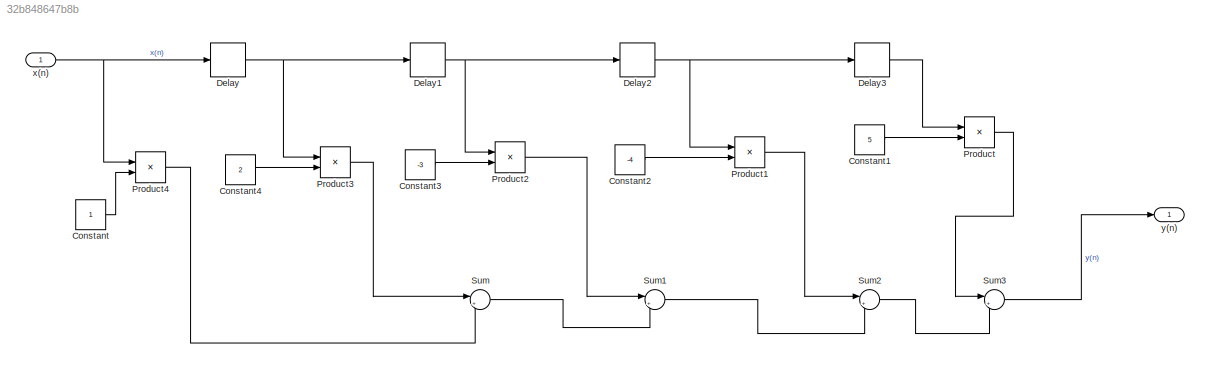
MODEL slx_32b848647b8b
KIND model
CONFIG AbsTol = auto
CONFIG EnableMultiTasking = off
CONFIG FixedStep = auto
CONFIG MaxStep = auto
CONFIG MinStep = auto
CONFIG RelTol = 1e-3
CONFIG SampleTimeConstraint = Unconstrained
CONFIG SolverName = VariableStepAuto
CONFIG StartTime = 0.0
CONFIG StopTime = 10.0
BLOCK [Constant] Constant
BLOCK [Constant] Constant1
  Value = 5
BLOCK [Constant] Constant2
  Value = -4
BLOCK [Constant] Constant3
  Value = -3
BLOCK [Constant] Constant4
  Value = 2
BLOCK [Delay] Delay
  DelayLength = 1
  InputPortMap = u0
  Ports = [1, 1]
BLOCK [Delay] Delay1
  DelayLength = 1
  InputPortMap = u0
  Ports = [1, 1]
BLOCK [Delay] Delay2
  DelayLength = 1
  InputPortMap = u0
  Ports = [1, 1]
BLOCK [Delay] Delay3
  DelayLength = 1
  InputPortMap = u0
  Ports = [1, 1]
BLOCK [Product] Product
  Ports = [2, 1]
BLOCK [Product] Product1
  Ports = [2, 1]
BLOCK [Product] Product2
  Ports = [2, 1]
BLOCK [Product] Product3
  Ports = [2, 1]
BLOCK [Product] Product4
  Ports = [2, 1]
BLOCK [Sum] Sum
  Inputs = |++
  Ports = [2, 1]
BLOCK [Sum] Sum1
  Inputs = |++
  Ports = [2, 1]
BLOCK [Sum] Sum2
  Inputs = |++
  Ports = [2, 1]
BLOCK [Sum] Sum3
  Inputs = |++
  Ports = [2, 1]
BLOCK [Inport] x(n)
  OutDataTypeStr = double
  PortDimensions = 1
  SampleTime = [0.10000000000000001,0]
  SamplingMode = Sample based
  SignalType = real
BLOCK [Outport] y(n)
  OutDataTypeStr = double
  PortDimensions = 1
  SampleTime = [0.10000000000000001,0]
  SamplingMode = Sample based
  SignalType = real
LINE Constant1:1 -> Product:2
LINE Constant2:1 -> Product1:2
LINE Constant3:1 -> Product2:2
LINE Constant4:1 -> Product3:2
LINE Constant:1 -> Product4:2
NET Delay1:1 -> Delay2:1, Product2:1
NET Delay2:1 -> Delay3:1, Product1:1
LINE Delay3:1 -> Product:1
NET Delay:1 -> Delay1:1, Product3:1
LINE Product1:1 -> Sum2:1
LINE Product2:1 -> Sum1:1
LINE Product3:1 -> Sum:1
LINE Product4:1 -> Sum:2
LINE Product:1 -> Sum3:1
LINE Sum1:1 -> Sum2:2
LINE Sum2:1 -> Sum3:2
LINE Sum3:1 -> y(n):1
LINE Sum:1 -> Sum1:2
NET x(n):1 -> Delay:1, Product4:1
note: NET lines group one-source signal fan-out (src -> all destinations, sorted); 1:1 wires keep LINE
